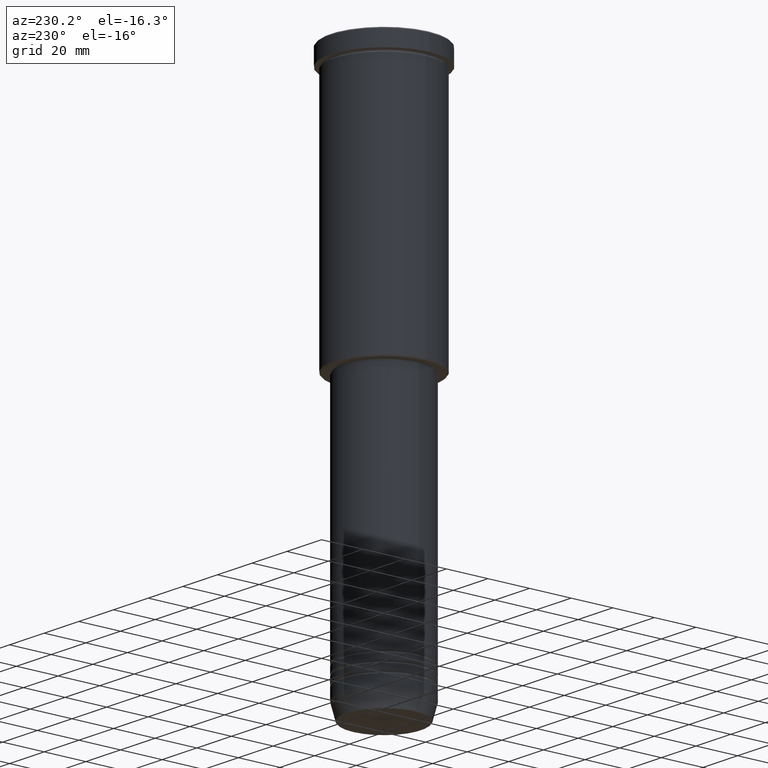
[diagram: clean part render]
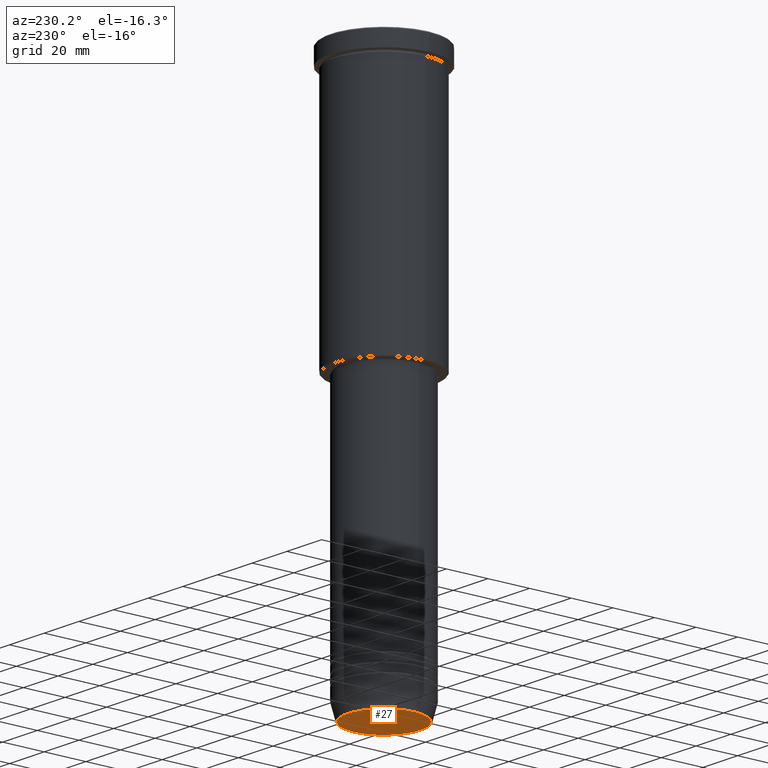
[diagram: same view with one face highlighted and labeled with its STEP entity id]
A machine part, auxiliary view. The second image highlights one B-rep face of the part: STEP entity #27.
In plain terms, the highlighted planar face has unit normal (0, -0, 1).
Its self-contained STEP definition (entity closure, byte-faithful):
#27 = ADVANCED_FACE ( 'NONE', ( #271 ), #165, .F. ) ;
#149 = VERTEX_POINT ( 'NONE', #470 ) ;
#165 = PLANE ( 'NONE',  #660 ) ;
#180 = AXIS2_PLACEMENT_3D ( 'NONE', #469, #1085, #652 ) ;
#271 = FACE_OUTER_BOUND ( 'NONE', #725, .T. ) ;
#274 = DIRECTION ( 'NONE',  ( 0.000000000000000000, 0.000000000000000000, -1.000000000000000000 ) ) ;
#341 = CARTESIAN_POINT ( 'NONE',  ( 17.47274296656153680, 0.000000000000000000, -260.0000000000000000 ) ) ;
#361 = ORIENTED_EDGE ( 'NONE', *, *, #542, .T. ) ;
#420 = VERTEX_POINT ( 'NONE', #341 ) ;
#425 = CIRCLE ( 'NONE', #1133, 17.47274296656153680 ) ;
#469 = CARTESIAN_POINT ( 'NONE',  ( 0.000000000000000000, 0.000000000000000000, -260.0000000000000000 ) ) ;
#470 = CARTESIAN_POINT ( 'NONE',  ( -17.47274296656153680, 2.169366823916868503E-15, -260.0000000000000000 ) ) ;
#526 = DIRECTION ( 'NONE',  ( 0.000000000000000000, -0.000000000000000000, 1.000000000000000000 ) ) ;
#542 = EDGE_CURVE ( 'NONE', #149, #420, #425, .T. ) ;
#571 = DIRECTION ( 'NONE',  ( 1.000000000000000000, 0.000000000000000000, 0.000000000000000000 ) ) ;
#607 = EDGE_CURVE ( 'NONE', #420, #149, #1032, .T. ) ;
#652 = DIRECTION ( 'NONE',  ( 1.000000000000000000, 0.000000000000000000, 0.000000000000000000 ) ) ;
#658 = CARTESIAN_POINT ( 'NONE',  ( 0.000000000000000000, 0.000000000000000000, -260.0000000000000000 ) ) ;
#660 = AXIS2_PLACEMENT_3D ( 'NONE', #988, #526, #897 ) ;
#725 = EDGE_LOOP ( 'NONE', ( #1044, #361 ) ) ;
#897 = DIRECTION ( 'NONE',  ( 1.000000000000000000, 0.000000000000000000, 0.000000000000000000 ) ) ;
#988 = CARTESIAN_POINT ( 'NONE',  ( 0.000000000000000000, 0.000000000000000000, -260.0000000000000000 ) ) ;
#1032 = CIRCLE ( 'NONE', #180, 17.47274296656153680 ) ;
#1044 = ORIENTED_EDGE ( 'NONE', *, *, #607, .T. ) ;
#1085 = DIRECTION ( 'NONE',  ( 0.000000000000000000, 0.000000000000000000, -1.000000000000000000 ) ) ;
#1133 = AXIS2_PLACEMENT_3D ( 'NONE', #658, #274, #571 ) ;